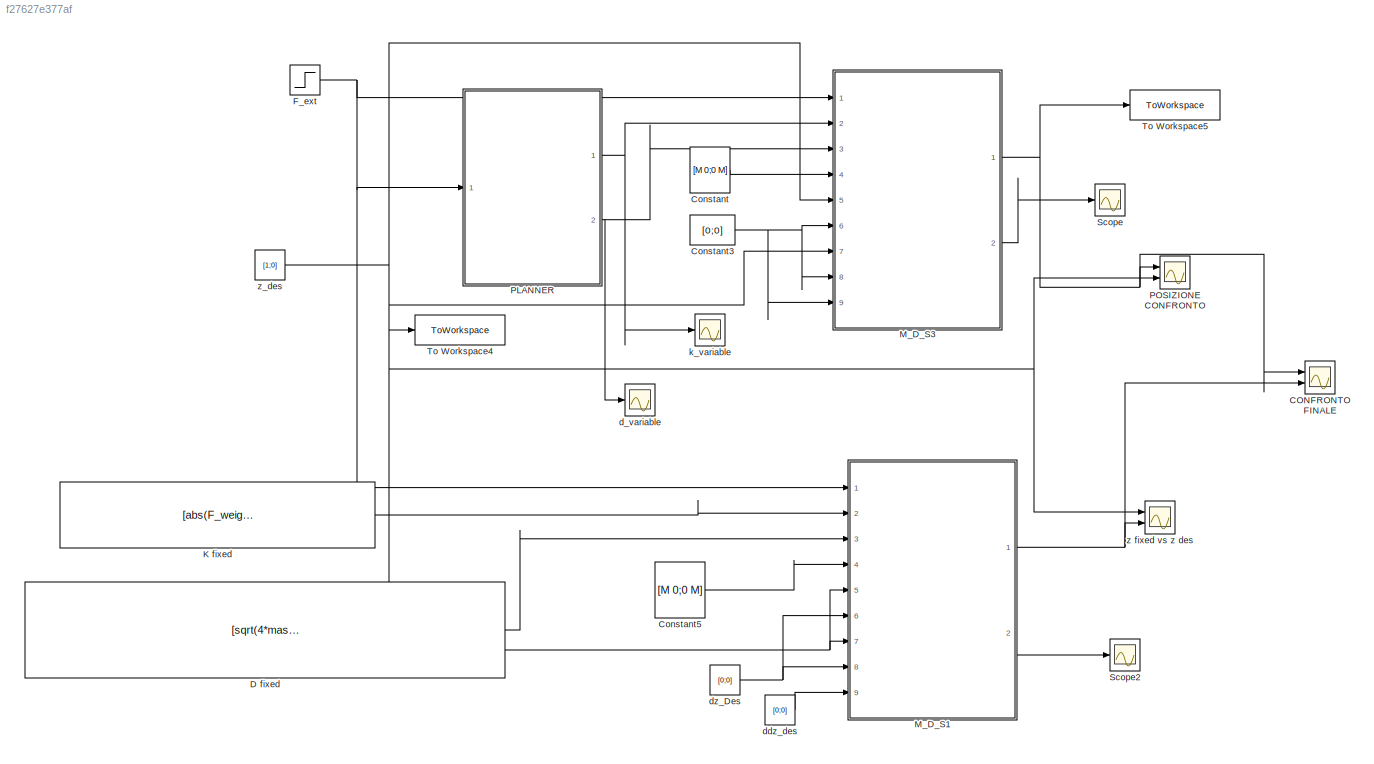
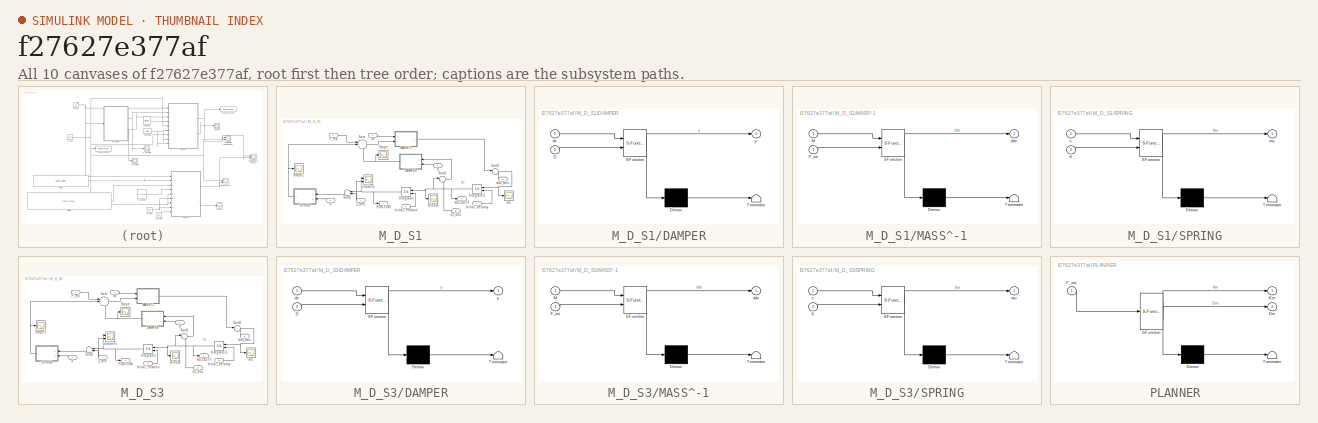
[diagram: thumbnail index - all 10 canvases of the model, root first then tree order]
MODEL slx_f27627e377af
KIND model
CONFIG AbsTol = auto
CONFIG EnableMultiTasking = off
CONFIG FixedStep = 0.001
CONFIG MaxStep = 0.05
CONFIG MinStep = auto
CONFIG RelTol = 1e-3
CONFIG SampleTimeConstraint = Unconstrained
CONFIG SolverName = FixedStepAuto
CONFIG StartTime = 0
CONFIG StopTime = 10.0
BLOCK [Scope] CONFRONTO FINALE
  Floating = off
  NumInputPorts = 2
  Ports = [2]
  ScopeSpecificationString = Simulink.scopes.TimeScopeBlockCfg('CurrentConfiguration', extmgr.ConfigurationSet(extmgr.Configuration('Core','General UI',true),extmgr.Configuration('Core','Source UI',true),extmgr.Configuration('Sources','WiredSimulink',true,'DataLoggingVariableName','ScopeData4'),extmgr.Configuration('Visuals','Time Domain',true,'SerializedDisplays',{struct('MinYLimReal','-0.17061','MaxYLimReal','0.11667','YLab...<+1607ch>
BLOCK [Constant] Constant
  Value = [M 0;0 M]
BLOCK [Constant] Constant3
  Value = [0;0]
BLOCK [Constant] Constant5
  Value = [M 0;0 M]
BLOCK [Constant] D fixed
  Value = [sqrt(4*mass*(abs(F_weight(1))/e_max)) 0; 0 sqrt(4*mass*(abs(F_weight(2))/e_max))]
BLOCK [Step] F_ext
  After = 2*F_weight
  Before = [0;0]
  SampleTime = 0
BLOCK [Constant] K fixed
  Value = [abs(F_weight(1))/e_max 0; 0 abs(F_weight(2))/e_max]
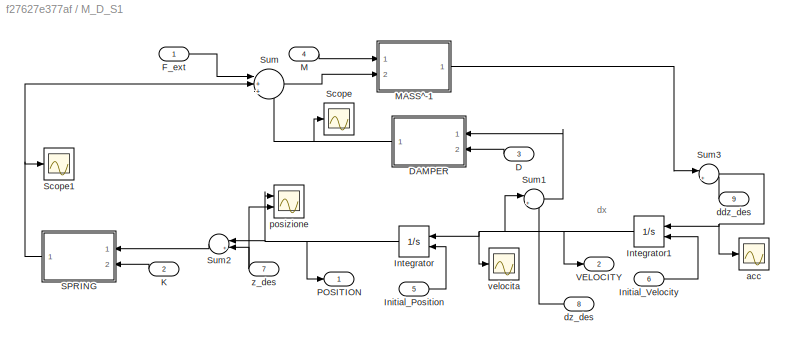
BLOCK [SubSystem] M_D_S1
  Ports = [9, 2]
  RequestExecContextInheritance = off
BLOCK [Inport] M_D_S1/D
  Port = 3
BLOCK [SubSystem] M_D_S1/DAMPER
  ErrorFcn = Stateflow.Translate.translate
  PermitHierarchicalResolution = ExplicitOnly
  Ports = [2, 1]
  RequestExecContextInheritance = off
  SFBlockType = MATLAB Function
  TreatAsAtomicUnit = on
BLOCK [Demux] M_D_S1/DAMPER/ Demux 
  Outputs = 1
  Ports = [1, 1]
BLOCK [S-Function] M_D_S1/DAMPER/ SFunction 
  EnableBusSupport = on
  FunctionName = sf_sfun
  PortCounts = [2 2]
  Ports = [2, 2]
  SFcnIsStateOwnerBlock = off
  SFunctionDeploymentMode = off
  Tag = Stateflow S-Function 3
BLOCK [Terminator] M_D_S1/DAMPER/ Terminator 
BLOCK [Inport] M_D_S1/DAMPER/D
  Port = 2
BLOCK [Inport] M_D_S1/DAMPER/dx
BLOCK [Outport] M_D_S1/DAMPER/y
BLOCK [Inport] M_D_S1/F_ext
BLOCK [Inport] M_D_S1/Initial_Position
  Port = 5
BLOCK [Inport] M_D_S1/Initial_Velocity
  Port = 6
BLOCK [Integrator] M_D_S1/Integrator
  InitialConditionSource = external
  Ports = [2, 1]
BLOCK [Integrator] M_D_S1/Integrator1
  InitialConditionSource = external
  Ports = [2, 1]
BLOCK [Inport] M_D_S1/K
  Port = 2
BLOCK [Inport] M_D_S1/M
  Port = 4
BLOCK [SubSystem] M_D_S1/MASS^-1
  ErrorFcn = Stateflow.Translate.translate
  PermitHierarchicalResolution = ExplicitOnly
  Ports = [2, 1]
  RequestExecContextInheritance = off
  SFBlockType = MATLAB Function
  TreatAsAtomicUnit = on
BLOCK [Demux] M_D_S1/MASS^-1/ Demux 
  Outputs = 1
  Ports = [1, 1]
BLOCK [S-Function] M_D_S1/MASS^-1/ SFunction 
  EnableBusSupport = on
  FunctionName = sf_sfun
  PortCounts = [2 2]
  Ports = [2, 2]
  SFcnIsStateOwnerBlock = off
  SFunctionDeploymentMode = off
  Tag = Stateflow S-Function 4
BLOCK [Terminator] M_D_S1/MASS^-1/ Terminator 
BLOCK [Inport] M_D_S1/MASS^-1/F_tot
  Port = 2
BLOCK [Inport] M_D_S1/MASS^-1/M
BLOCK [Outport] M_D_S1/MASS^-1/ddx
BLOCK [Outport] M_D_S1/POSITION
BLOCK [SubSystem] M_D_S1/SPRING
  ErrorFcn = Stateflow.Translate.translate
  PermitHierarchicalResolution = ExplicitOnly
  Ports = [2, 1]
  RequestExecContextInheritance = off
  SFBlockType = MATLAB Function
  TreatAsAtomicUnit = on
BLOCK [Demux] M_D_S1/SPRING/ Demux 
  Outputs = 1
  Ports = [1, 1]
BLOCK [S-Function] M_D_S1/SPRING/ SFunction 
  EnableBusSupport = on
  FunctionName = sf_sfun
  PortCounts = [2 2]
  Ports = [2, 2]
  SFcnIsStateOwnerBlock = off
  SFunctionDeploymentMode = off
  Tag = Stateflow S-Function 5
BLOCK [Terminator] M_D_S1/SPRING/ Terminator 
BLOCK [Inport] M_D_S1/SPRING/K
  Port = 2
BLOCK [Outport] M_D_S1/SPRING/tau
BLOCK [Inport] M_D_S1/SPRING/x
BLOCK [Scope] M_D_S1/Scope
  Floating = off
  NumInputPorts = 1
  Ports = [1]
  ScopeSpecificationString = Simulink.scopes.TimeScopeBlockCfg('CurrentConfiguration', extmgr.ConfigurationSet(extmgr.Configuration('Core','General UI',true),extmgr.Configuration('Core','Source UI',true),extmgr.Configuration('Sources','WiredSimulink',true,'DataLoggingVariableName','ScopeData15'),extmgr.Configuration('Visuals','Time Domain',true,'SerializedDisplays',{struct('MinYLimReal','-37.99931','MaxYLimReal','6.12026','YL...<+1429ch>
BLOCK [Scope] M_D_S1/Scope1
  Floating = off
  NumInputPorts = 1
  Ports = [1]
  ScopeSpecificationString = Simulink.scopes.TimeScopeBlockCfg('CurrentConfiguration', extmgr.ConfigurationSet(extmgr.Configuration('Core','General UI',true),extmgr.Configuration('Core','Source UI',true),extmgr.Configuration('Sources','WiredSimulink',true,'DataLoggingVariableName','ScopeData17'),extmgr.Configuration('Visuals','Time Domain',true,'SerializedDisplays',{struct('MinYLimReal','-42.49417','MaxYLimReal','4.72157','YL...<+1454ch>
BLOCK [Sum] M_D_S1/Sum
  Inputs = |+++
  Ports = [3, 1]
BLOCK [Sum] M_D_S1/Sum1
  Inputs = |+-
  Ports = [2, 1]
BLOCK [Sum] M_D_S1/Sum2
  Inputs = |+-
  Ports = [2, 1]
BLOCK [Sum] M_D_S1/Sum3
  Inputs = |++
  Ports = [2, 1]
BLOCK [Outport] M_D_S1/VELOCITY
  Port = 2
BLOCK [Scope] M_D_S1/acc
  Floating = off
  NumInputPorts = 1
  Ports = [1]
  ScopeSpecificationString = Simulink.scopes.TimeScopeBlockCfg('CurrentConfiguration', extmgr.ConfigurationSet(extmgr.Configuration('Core','General UI',true),extmgr.Configuration('Core','Source UI',true),extmgr.Configuration('Sources','WiredSimulink',true,'DataLoggingVariableName','ScopeData6'),extmgr.Configuration('Visuals','Time Domain',true,'SerializedDisplays',{struct('MinYLimReal','-7.22729','MaxYLimReal','16.68265','YLa...<+1407ch>
BLOCK [Inport] M_D_S1/ddz_des
  Port = 9
BLOCK [Inport] M_D_S1/dz_des
  Port = 8
BLOCK [Scope] M_D_S1/posizione
  Floating = off
  NumInputPorts = 2
  Ports = [2]
  ScopeSpecificationString = Simulink.scopes.TimeScopeBlockCfg('CurrentConfiguration', extmgr.ConfigurationSet(extmgr.Configuration('Core','General UI',true),extmgr.Configuration('Core','Source UI',true),extmgr.Configuration('Sources','WiredSimulink',true,'DataLoggingVariableName','ScopeData8'),extmgr.Configuration('Visuals','Time Domain',true,'SerializedDisplays',{struct('MinYLimReal','-0.74375','MaxYLimReal','1.19375','YLab...<+1431ch>
BLOCK [Scope] M_D_S1/velocita
  Floating = off
  NumInputPorts = 1
  Ports = [1]
  ScopeSpecificationString = Simulink.scopes.TimeScopeBlockCfg('CurrentConfiguration', extmgr.ConfigurationSet(extmgr.Configuration('Core','General UI',true),extmgr.Configuration('Core','Source UI',true),extmgr.Configuration('Sources','WiredSimulink',true,'DataLoggingVariableName','ScopeData7'),extmgr.Configuration('Visuals','Time Domain',true,'SerializedDisplays',{struct('MinYLimReal','-0.62785','MaxYLimReal','0.50433','YLab...<+1417ch>
BLOCK [Inport] M_D_S1/z_des
  Port = 7
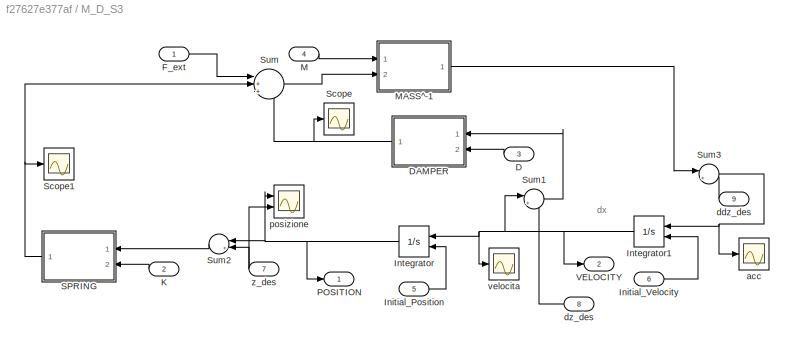
BLOCK [SubSystem] M_D_S3
  Ports = [9, 2]
  RequestExecContextInheritance = off
BLOCK [Inport] M_D_S3/D
  Port = 3
BLOCK [SubSystem] M_D_S3/DAMPER
  ErrorFcn = Stateflow.Translate.translate
  PermitHierarchicalResolution = ExplicitOnly
  Ports = [2, 1]
  RequestExecContextInheritance = off
  SFBlockType = MATLAB Function
  TreatAsAtomicUnit = on
BLOCK [Demux] M_D_S3/DAMPER/ Demux 
  Outputs = 1
  Ports = [1, 1]
BLOCK [S-Function] M_D_S3/DAMPER/ SFunction 
  EnableBusSupport = on
  FunctionName = sf_sfun
  PortCounts = [2 2]
  Ports = [2, 2]
  SFcnIsStateOwnerBlock = off
  SFunctionDeploymentMode = off
  Tag = Stateflow S-Function 11
BLOCK [Terminator] M_D_S3/DAMPER/ Terminator 
BLOCK [Inport] M_D_S3/DAMPER/D
  Port = 2
BLOCK [Inport] M_D_S3/DAMPER/dx
BLOCK [Outport] M_D_S3/DAMPER/y
BLOCK [Inport] M_D_S3/F_ext
BLOCK [Inport] M_D_S3/Initial_Position
  Port = 5
BLOCK [Inport] M_D_S3/Initial_Velocity
  Port = 6
BLOCK [Integrator] M_D_S3/Integrator
  InitialConditionSource = external
  Ports = [2, 1]
BLOCK [Integrator] M_D_S3/Integrator1
  InitialConditionSource = external
  Ports = [2, 1]
BLOCK [Inport] M_D_S3/K
  Port = 2
BLOCK [Inport] M_D_S3/M
  Port = 4
BLOCK [SubSystem] M_D_S3/MASS^-1
  ErrorFcn = Stateflow.Translate.translate
  PermitHierarchicalResolution = ExplicitOnly
  Ports = [2, 1]
  RequestExecContextInheritance = off
  SFBlockType = MATLAB Function
  TreatAsAtomicUnit = on
BLOCK [Demux] M_D_S3/MASS^-1/ Demux 
  Outputs = 1
  Ports = [1, 1]
BLOCK [S-Function] M_D_S3/MASS^-1/ SFunction 
  EnableBusSupport = on
  FunctionName = sf_sfun
  PortCounts = [2 2]
  Ports = [2, 2]
  SFcnIsStateOwnerBlock = off
  SFunctionDeploymentMode = off
  Tag = Stateflow S-Function 12
BLOCK [Terminator] M_D_S3/MASS^-1/ Terminator 
BLOCK [Inport] M_D_S3/MASS^-1/F_tot
  Port = 2
BLOCK [Inport] M_D_S3/MASS^-1/M
BLOCK [Outport] M_D_S3/MASS^-1/ddx
BLOCK [Outport] M_D_S3/POSITION
BLOCK [SubSystem] M_D_S3/SPRING
  ErrorFcn = Stateflow.Translate.translate
  PermitHierarchicalResolution = ExplicitOnly
  Ports = [2, 1]
  RequestExecContextInheritance = off
  SFBlockType = MATLAB Function
  TreatAsAtomicUnit = on
BLOCK [Demux] M_D_S3/SPRING/ Demux 
  Outputs = 1
  Ports = [1, 1]
BLOCK [S-Function] M_D_S3/SPRING/ SFunction 
  EnableBusSupport = on
  FunctionName = sf_sfun
  PortCounts = [2 2]
  Ports = [2, 2]
  SFcnIsStateOwnerBlock = off
  SFunctionDeploymentMode = off
  Tag = Stateflow S-Function 13
BLOCK [Terminator] M_D_S3/SPRING/ Terminator 
BLOCK [Inport] M_D_S3/SPRING/K
  Port = 2
BLOCK [Outport] M_D_S3/SPRING/tau
BLOCK [Inport] M_D_S3/SPRING/x
BLOCK [Scope] M_D_S3/Scope
  Floating = off
  NumInputPorts = 1
  Ports = [1]
  ScopeSpecificationString = Simulink.scopes.TimeScopeBlockCfg('CurrentConfiguration', extmgr.ConfigurationSet(extmgr.Configuration('Core','General UI',true),extmgr.Configuration('Core','Source UI',true),extmgr.Configuration('Sources','WiredSimulink',true,'DataLoggingVariableName','ScopeData15'),extmgr.Configuration('Visuals','Time Domain',true,'SerializedDisplays',{struct('MinYLimReal','-37.99931','MaxYLimReal','6.12026','YL...<+1429ch>
BLOCK [Scope] M_D_S3/Scope1
  Floating = off
  NumInputPorts = 1
  Ports = [1]
  ScopeSpecificationString = Simulink.scopes.TimeScopeBlockCfg('CurrentConfiguration', extmgr.ConfigurationSet(extmgr.Configuration('Core','General UI',true),extmgr.Configuration('Core','Source UI',true),extmgr.Configuration('Sources','WiredSimulink',true,'DataLoggingVariableName','ScopeData17'),extmgr.Configuration('Visuals','Time Domain',true,'SerializedDisplays',{struct('MinYLimReal','-42.49417','MaxYLimReal','4.72157','YL...<+1454ch>
BLOCK [Sum] M_D_S3/Sum
  Inputs = |+++
  Ports = [3, 1]
BLOCK [Sum] M_D_S3/Sum1
  Inputs = |+-
  Ports = [2, 1]
BLOCK [Sum] M_D_S3/Sum2
  Inputs = |+-
  Ports = [2, 1]
BLOCK [Sum] M_D_S3/Sum3
  Inputs = |++
  Ports = [2, 1]
BLOCK [Outport] M_D_S3/VELOCITY
  Port = 2
BLOCK [Scope] M_D_S3/acc
  Floating = off
  NumInputPorts = 1
  Ports = [1]
  ScopeSpecificationString = Simulink.scopes.TimeScopeBlockCfg('CurrentConfiguration', extmgr.ConfigurationSet(extmgr.Configuration('Core','General UI',true),extmgr.Configuration('Core','Source UI',true),extmgr.Configuration('Sources','WiredSimulink',true,'DataLoggingVariableName','ScopeData6'),extmgr.Configuration('Visuals','Time Domain',true,'SerializedDisplays',{struct('MinYLimReal','-7.22729','MaxYLimReal','16.68265','YLa...<+1407ch>
BLOCK [Inport] M_D_S3/ddz_des
  Port = 9
BLOCK [Inport] M_D_S3/dz_des
  Port = 8
BLOCK [Scope] M_D_S3/posizione
  Floating = off
  NumInputPorts = 2
  Ports = [2]
  ScopeSpecificationString = Simulink.scopes.TimeScopeBlockCfg('CurrentConfiguration', extmgr.ConfigurationSet(extmgr.Configuration('Core','General UI',true),extmgr.Configuration('Core','Source UI',true),extmgr.Configuration('Sources','WiredSimulink',true,'DataLoggingVariableName','ScopeData8'),extmgr.Configuration('Visuals','Time Domain',true,'SerializedDisplays',{struct('MinYLimReal','-0.74375','MaxYLimReal','1.19375','YLab...<+1431ch>
BLOCK [Scope] M_D_S3/velocita
  Floating = off
  NumInputPorts = 1
  Ports = [1]
  ScopeSpecificationString = Simulink.scopes.TimeScopeBlockCfg('CurrentConfiguration', extmgr.ConfigurationSet(extmgr.Configuration('Core','General UI',true),extmgr.Configuration('Core','Source UI',true),extmgr.Configuration('Sources','WiredSimulink',true,'DataLoggingVariableName','ScopeData7'),extmgr.Configuration('Visuals','Time Domain',true,'SerializedDisplays',{struct('MinYLimReal','-0.62785','MaxYLimReal','0.50433','YLab...<+1417ch>
BLOCK [Inport] M_D_S3/z_des
  Port = 7
BLOCK [SubSystem] PLANNER
  ErrorFcn = Stateflow.Translate.translate
  PermitHierarchicalResolution = ExplicitOnly
  Ports = [1, 2]
  RequestExecContextInheritance = off
  SFBlockType = MATLAB Function
  TreatAsAtomicUnit = on
BLOCK [Demux] PLANNER/ Demux 
  Outputs = 1
  Ports = [1, 1]
BLOCK [S-Function] PLANNER/ SFunction 
  EnableBusSupport = on
  FunctionName = sf_sfun
  Parameters = F_max,F_weight,e_max,mass
  PortCounts = [1 3]
  Ports = [1, 3]
  SFcnIsStateOwnerBlock = off
  SFunctionDeploymentMode = off
  Tag = Stateflow S-Function 18
BLOCK [Terminator] PLANNER/ Terminator 
BLOCK [Outport] PLANNER/Dm
  Port = 2
BLOCK [Inport] PLANNER/F_ext
BLOCK [Outport] PLANNER/Km
BLOCK [Scope] POSIZIONE CONFRONTO
  Floating = off
  NumInputPorts = 2
  Ports = [2]
  ScopeSpecificationString = Simulink.scopes.TimeScopeBlockCfg('CurrentConfiguration', extmgr.ConfigurationSet(extmgr.Configuration('Core','General UI',true),extmgr.Configuration('Core','Source UI',true),extmgr.Configuration('Sources','WiredSimulink',true,'DataLoggingVariableName','ScopeData1'),extmgr.Configuration('Visuals','Time Domain',true,'SerializedDisplays',{struct('MinYLimReal','-0.65508','MaxYLimReal','1.2555','YLabe...<+1566ch>
BLOCK [Scope] Scope
  Floating = off
  NumInputPorts = 1
  Ports = [1]
  ScopeSpecificationString = Simulink.scopes.TimeScopeBlockCfg('CurrentConfiguration', extmgr.ConfigurationSet(extmgr.Configuration('Core','General UI',true),extmgr.Configuration('Core','Source UI',true),extmgr.Configuration('Sources','WiredSimulink',true,'DataLoggingVariableName','ScopeData1'),extmgr.Configuration('Visuals','Time Domain',true),extmgr.Configuration('Tools','Plot Navigation',true),extmgr.Configuration('Tools',...<+40ch>
BLOCK [Scope] Scope2
  Floating = off
  NumInputPorts = 1
  Ports = [1]
  ScopeSpecificationString = Simulink.scopes.TimeScopeBlockCfg('CurrentConfiguration', extmgr.ConfigurationSet(extmgr.Configuration('Core','General UI',true),extmgr.Configuration('Core','Source UI',true),extmgr.Configuration('Sources','WiredSimulink',true,'DataLoggingVariableName','ScopeData3'),extmgr.Configuration('Visuals','Time Domain',true),extmgr.Configuration('Tools','Plot Navigation',true),extmgr.Configuration('Tools',...<+40ch>
BLOCK [ToWorkspace] To Workspace4
  FixptAsFi = on
  MaxDataPoints = inf
  Ports = [1]
  SampleTime = -1
  Save2DSignal = 2-D array (concatenate along first dimension)
  SaveFormat = Structure With Time
  VariableName = z_des1
BLOCK [ToWorkspace] To Workspace5
  FixptAsFi = on
  MaxDataPoints = inf
  Ports = [1]
  SampleTime = -1
  SaveFormat = Structure With Time
  VariableName = z
BLOCK [Scope] d_variable
  Floating = off
  NumInputPorts = 1
  Ports = [1]
  ScopeSpecificationString = Simulink.scopes.TimeScopeBlockCfg('CurrentConfiguration', extmgr.ConfigurationSet(extmgr.Configuration('Core','General UI',true),extmgr.Configuration('Core','Source UI',true),extmgr.Configuration('Sources','WiredSimulink',true,'DataLoggingVariableName','ScopeData6'),extmgr.Configuration('Visuals','Time Domain',true,'SerializedDisplays',{struct('MinYLimReal','-25.24807','MaxYLimReal','227.23259','Y...<+1497ch>
BLOCK [Constant] ddz_des
  Value = [0;0]
BLOCK [Constant] dz_Des
  Value = [0;0]
BLOCK [Scope] k_variable
  Floating = off
  NumInputPorts = 1
  Ports = [1]
  ScopeSpecificationString = Simulink.scopes.TimeScopeBlockCfg('CurrentConfiguration', extmgr.ConfigurationSet(extmgr.Configuration('Core','General UI',true),extmgr.Configuration('Core','Source UI',true),extmgr.Configuration('Sources','WiredSimulink',true,'DataLoggingVariableName','ScopeData5'),extmgr.Configuration('Visuals','Time Domain',true,'SerializedDisplays',{struct('MinYLimReal','-254.98592','MaxYLimReal','2294.87326',...<+1596ch>
BLOCK [Scope] z fixed vs z des
  Floating = off
  NumInputPorts = 2
  Ports = [2]
  ScopeSpecificationString = Simulink.scopes.TimeScopeBlockCfg('CurrentConfiguration', extmgr.ConfigurationSet(extmgr.Configuration('Core','General UI',true),extmgr.Configuration('Core','Source UI',true),extmgr.Configuration('Sources','WiredSimulink',true,'DataLoggingVariableName','ScopeData2'),extmgr.Configuration('Visuals','Time Domain',true,'SerializedDisplays',{struct('MinYLimReal','-0.2375','MaxYLimReal','1.1375','YLabel...<+1425ch>
BLOCK [Constant] z_des
  Value = [1;0]
ANNOTATION M_D_S1: dx
ANNOTATION M_D_S3: dx
NET Constant3:1 -> M_D_S3:6, M_D_S3:8, M_D_S3:9
LINE Constant5:1 -> M_D_S1:4
LINE Constant:1 -> M_D_S3:4
LINE D fixed:1 -> M_D_S1:3
NET F_ext:1 -> M_D_S1:1, M_D_S3:1, PLANNER:1
LINE K fixed:1 -> M_D_S1:2
LINE M_D_S1/D:1 -> M_D_S1/DAMPER:2
NET M_D_S1/DAMPER:1 -> M_D_S1/Scope:1, M_D_S1/Sum:3
LINE M_D_S1/F_ext:1 -> M_D_S1/Sum:1
LINE M_D_S1/Initial_Position:1 -> M_D_S1/Integrator:2
LINE M_D_S1/Initial_Velocity:1 -> M_D_S1/Integrator1:2
NET M_D_S1/Integrator1:1 -> M_D_S1/Integrator:1, M_D_S1/Sum1:1, M_D_S1/VELOCITY:1, M_D_S1/velocita:1
NET M_D_S1/Integrator:1 -> M_D_S1/POSITION:1, M_D_S1/Sum2:1, M_D_S1/posizione:1
LINE M_D_S1/K:1 -> M_D_S1/SPRING:2
LINE M_D_S1/M:1 -> M_D_S1/MASS^-1:1
LINE M_D_S1/MASS^-1:1 -> M_D_S1/Sum3:1
NET M_D_S1/SPRING:1 -> M_D_S1/Scope1:1, M_D_S1/Sum:2
LINE M_D_S1/Sum1:1 -> M_D_S1/DAMPER:1
LINE M_D_S1/Sum2:1 -> M_D_S1/SPRING:1
NET M_D_S1/Sum3:1 -> M_D_S1/Integrator1:1, M_D_S1/acc:1
LINE M_D_S1/Sum:1 -> M_D_S1/MASS^-1:2
LINE M_D_S1/ddz_des:1 -> M_D_S1/Sum3:2
LINE M_D_S1/dz_des:1 -> M_D_S1/Sum1:2
NET M_D_S1/z_des:1 -> M_D_S1/Sum2:2, M_D_S1/posizione:2
NET M_D_S1:1 -> CONFRONTO FINALE:2, z fixed vs z des:2
LINE M_D_S1:2 -> Scope2:1
LINE M_D_S3/D:1 -> M_D_S3/DAMPER:2
NET M_D_S3/DAMPER:1 -> M_D_S3/Scope:1, M_D_S3/Sum:3
LINE M_D_S3/F_ext:1 -> M_D_S3/Sum:1
LINE M_D_S3/Initial_Position:1 -> M_D_S3/Integrator:2
LINE M_D_S3/Initial_Velocity:1 -> M_D_S3/Integrator1:2
NET M_D_S3/Integrator1:1 -> M_D_S3/Integrator:1, M_D_S3/Sum1:1, M_D_S3/VELOCITY:1, M_D_S3/velocita:1
NET M_D_S3/Integrator:1 -> M_D_S3/POSITION:1, M_D_S3/Sum2:1, M_D_S3/posizione:1
LINE M_D_S3/K:1 -> M_D_S3/SPRING:2
LINE M_D_S3/M:1 -> M_D_S3/MASS^-1:1
LINE M_D_S3/MASS^-1:1 -> M_D_S3/Sum3:1
NET M_D_S3/SPRING:1 -> M_D_S3/Scope1:1, M_D_S3/Sum:2
LINE M_D_S3/Sum1:1 -> M_D_S3/DAMPER:1
LINE M_D_S3/Sum2:1 -> M_D_S3/SPRING:1
NET M_D_S3/Sum3:1 -> M_D_S3/Integrator1:1, M_D_S3/acc:1
LINE M_D_S3/Sum:1 -> M_D_S3/MASS^-1:2
LINE M_D_S3/ddz_des:1 -> M_D_S3/Sum3:2
LINE M_D_S3/dz_des:1 -> M_D_S3/Sum1:2
NET M_D_S3/z_des:1 -> M_D_S3/Sum2:2, M_D_S3/posizione:2
NET M_D_S3:1 -> CONFRONTO FINALE:1, POSIZIONE CONFRONTO:1, To Workspace5:1
LINE M_D_S3:2 -> Scope:1
NET PLANNER:1 -> M_D_S3:2, k_variable:1
NET PLANNER:2 -> M_D_S3:3, d_variable:1
LINE ddz_des:1 -> M_D_S1:9
NET dz_Des:1 -> M_D_S1:6, M_D_S1:8
NET z_des:1 -> M_D_S1:5, M_D_S1:7, M_D_S3:5, M_D_S3:7, POSIZIONE CONFRONTO:2, To Workspace4:1, z fixed vs z des:1
note: NET lines group one-source signal fan-out (src -> all destinations, sorted); 1:1 wires keep LINE
CHART M_D_S1/DAMPER states=1 transitions=1
  STATE_LABEL 'eML_blk_kernel()'
  STATE_LABEL 'SCRIPT:\nfunction y = fcn(dx, D)\ny = - D*dx;\nend\n'
CHART M_D_S1/MASS^-1 states=1 transitions=1
  STATE_LABEL 'eML_blk_kernel()'
  STATE_LABEL 'SCRIPT:\nfunction ddx = fcn(M,F_tot)\nddx = (M^-1)*F_tot;\nend\n'
CHART M_D_S1/SPRING states=1 transitions=1
  STATE_LABEL 'eML_blk_kernel()'
  STATE_LABEL 'SCRIPT:\nfunction tau = fcn(x, K)\ntau= -K*x;\nend\n\n\n'
CHART M_D_S3/DAMPER states=1 transitions=1
  STATE_LABEL 'eML_blk_kernel()'
  STATE_LABEL 'SCRIPT:\nfunction y = fcn(dx, D)\ny = - D*dx;\nend\n'
CHART M_D_S3/MASS^-1 states=1 transitions=1
  STATE_LABEL 'eML_blk_kernel()'
  STATE_LABEL 'SCRIPT:\nfunction ddx = fcn(M,F_tot)\nddx = (M^-1)*F_tot;\nend\n'
CHART M_D_S3/SPRING states=1 transitions=1
  STATE_LABEL 'eML_blk_kernel()'
  STATE_LABEL 'SCRIPT:\nfunction tau = fcn(x, K)\ntau= -K*x;\nend\n\n\n'
CHART PLANNER states=1 transitions=1
  STATE_LABEL 'eML_blk_kernel()'
  STATE_LABEL 'SCRIPT:\nfunction [Km,Dm] = fcn(e_max, F_max, F_ext, mass, F_weight)\n\n% with an estimated weight, k and d increase \n%% Outputs\n% Km            stiffness matrix\n% Dm            damping matrix \n%% Inputs\n% time          current simulation time\n% F_ext         measured external force\n\n% variables initialization \npersistent kx ky dx dy\n% initialization of k and d \nif isempty(kx)\n   kx = max(F_max(1), a...<+519ch>'
CHART  states=0 transitions=0
CHART  states=0 transitions=0
CHART  states=0 transitions=0
CHART  states=0 transitions=0
CHART  states=0 transitions=0
CHART  states=0 transitions=0
CHART  states=0 transitions=0
